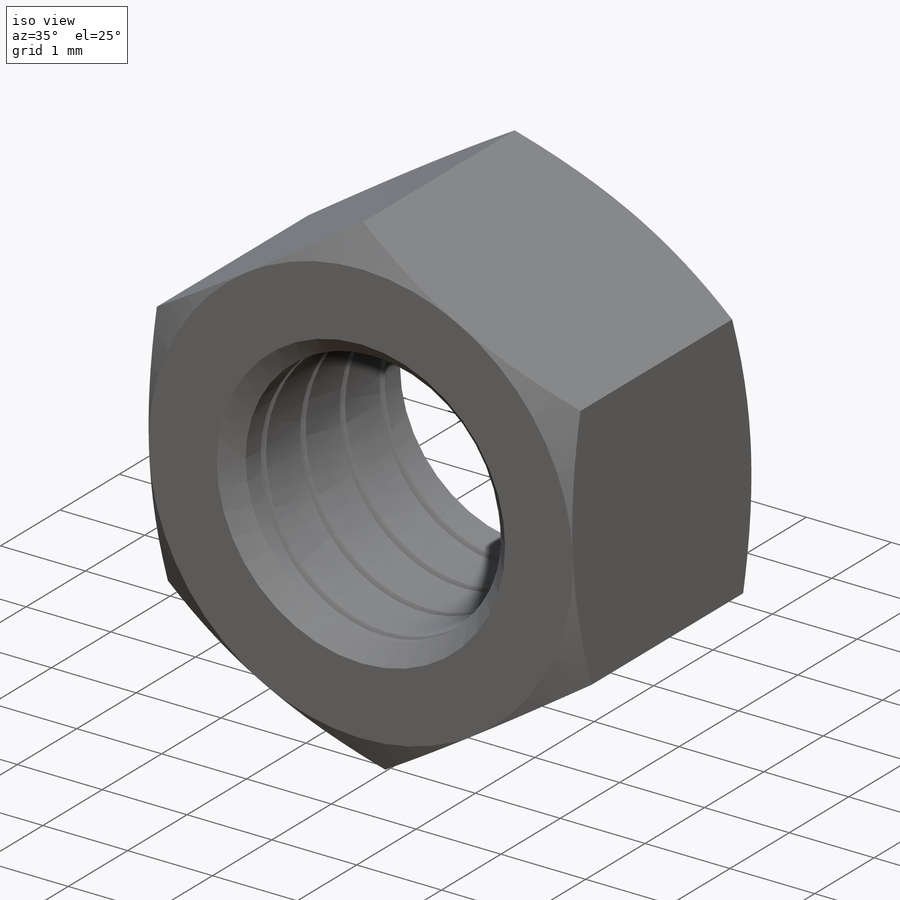
[diagram: iso view]
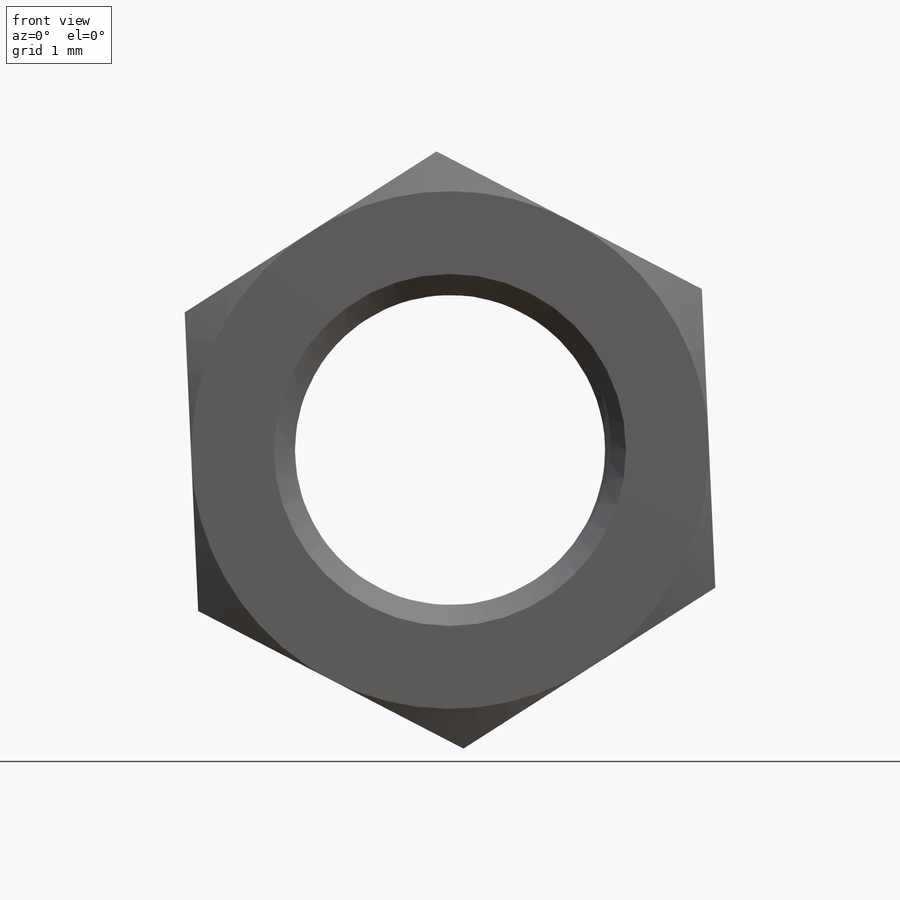
[diagram: front view]
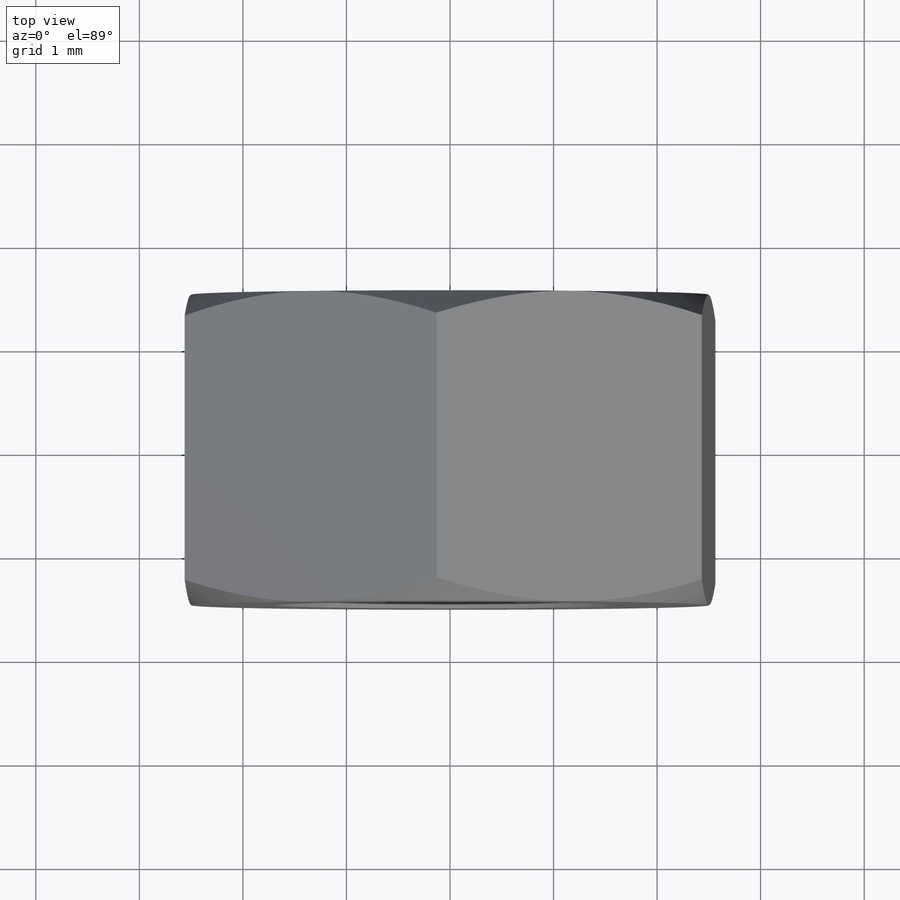
[diagram: top view]
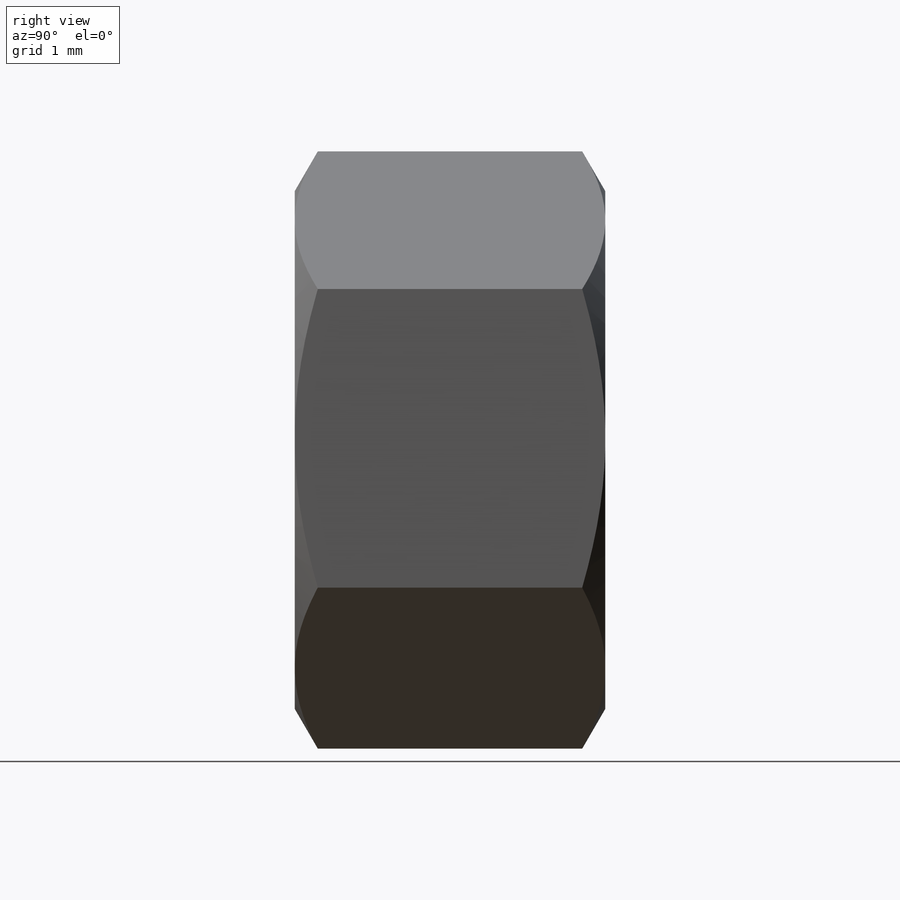
[diagram: right view]
SOLIDWORKS PART (.sldprt)
format: sldprt  version: not decoded by parser v0  size: 281,088 bytes
history: native  units: mm
features: sketch x5, cut_extrude x2, material x1, extrude x1, mirror x1, chamfer x1, helix x1, sweep x1 (+12 scaffold rows collapsed)
feature tree (25):
  scaffold x12  (default folders/planes/origin — collapsed)
  material  "Material <not specified>"
  sketch  "Sketch1"  dims[D1=5.0mm]
  extrude  "Boss-Extrude1"  Depth=1.5mm
  sketch  "Sketch2"
  cut_extrude  "Cut-Extrude1"  Depth=1.5mm
  mirror  "Mirror1"
  sketch  "Sketch3"  dims[D1=~1.361419mm]
  cut_extrude  "Cut-Extrude2"  [1 undecoded]
  chamfer  "Chamfer1"  Distance=0.2mm Angle=45deg
  sketch  "Sketch5"  dims[D1=~1.885654mm]
  helix  "Helix/Spiral1"  Pitch=5mm
  sketch  "Sketch6"  dims[D1=1.0mm]
  sweep  "Cut-Sweep1"
decode coverage: 8 of 12 modeling features carry decoded parameters
note: ~ marks probable driven/reference dimensions
note: 1 parameter value undecoded
note: suppression state not decoded; provenance and decode notes live in map.json
